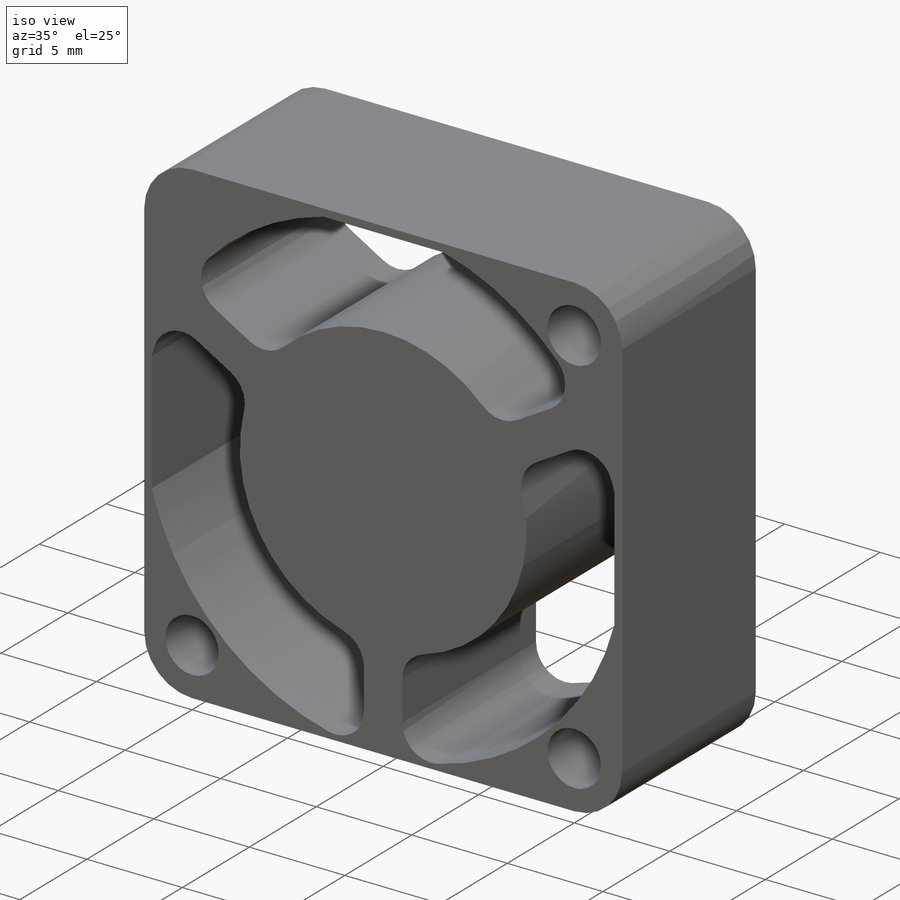
[diagram: iso view]
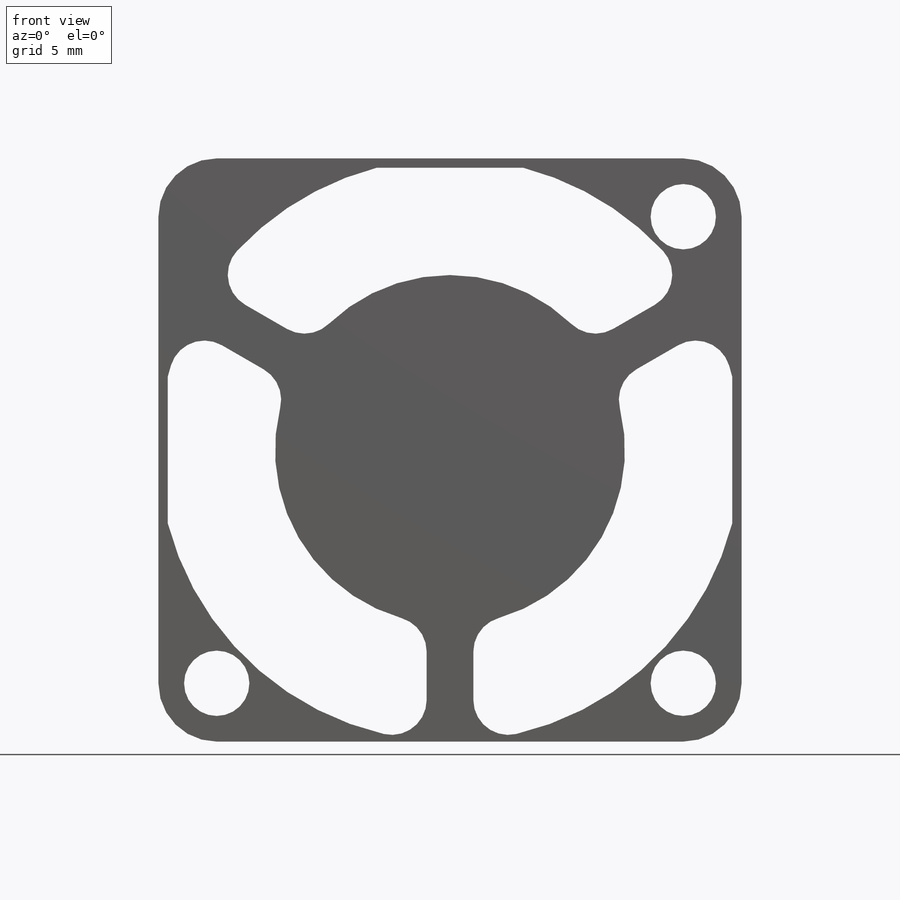
[diagram: front view]
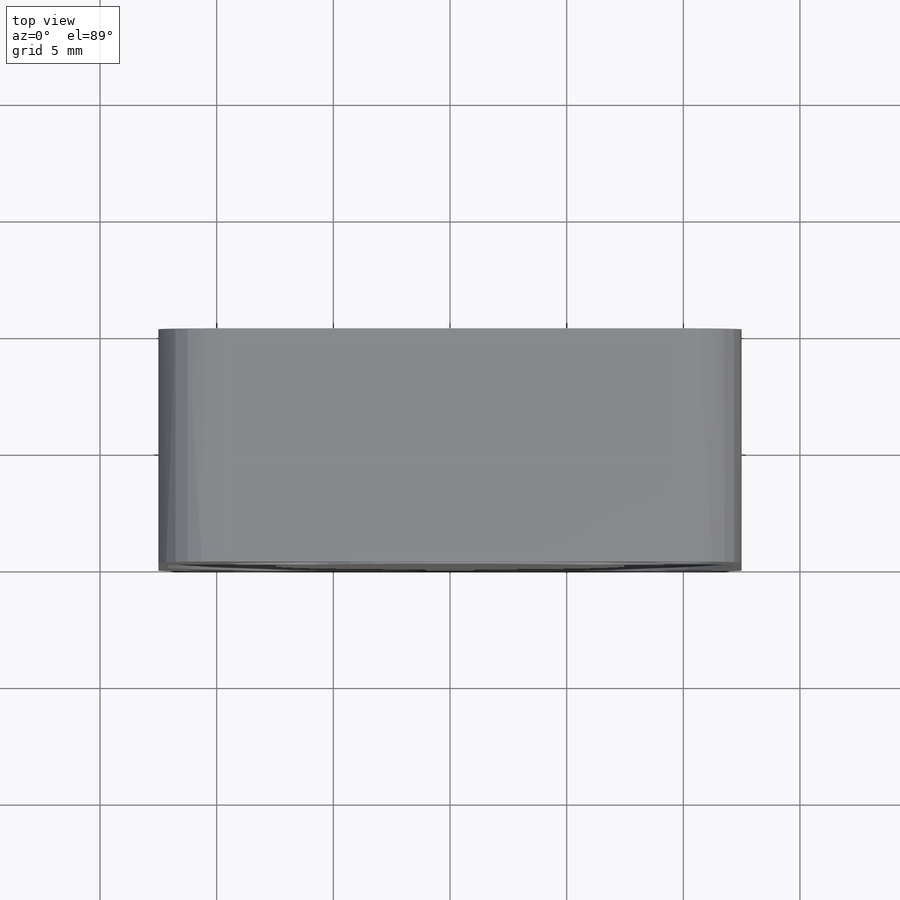
[diagram: top view]
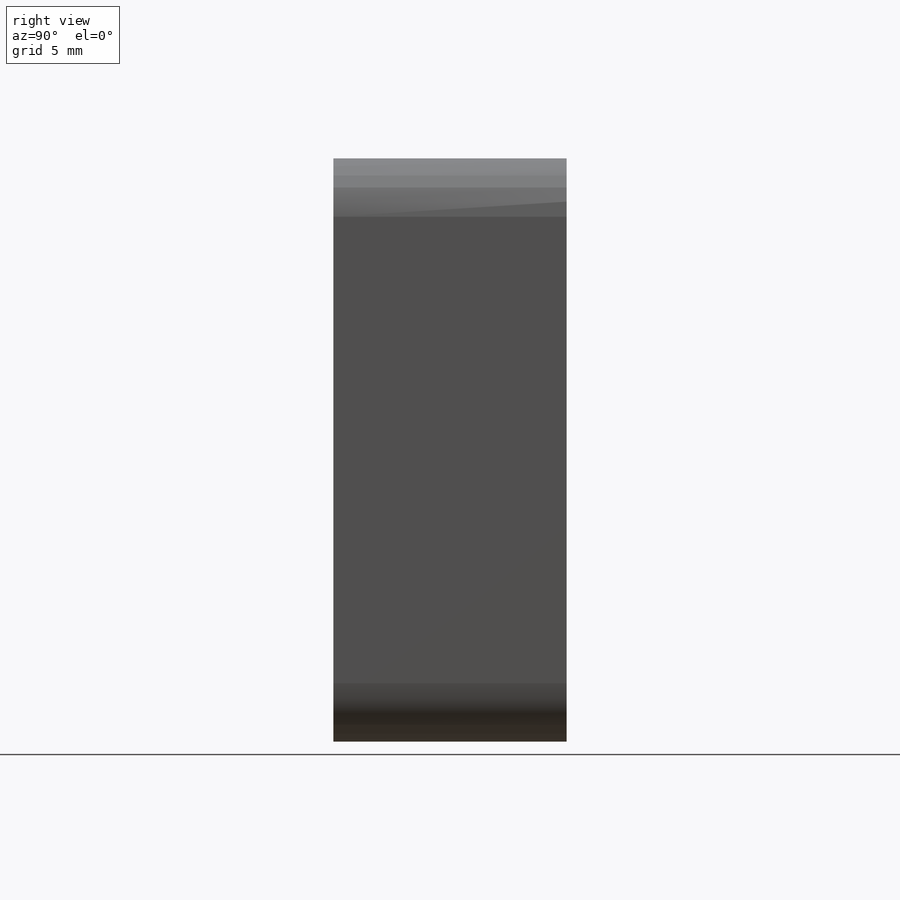
[diagram: right view]
SOLIDWORKS PART (.sldprt)
format: sldprt  version: not decoded by parser v0  size: 307,200 bytes
history: native  units: mm
features: sketch x4, fillet x2, material x1, extrude x1, cut_extrude x1, hole x1 (+16 scaffold rows collapsed)
feature tree (26):
  scaffold x16  (default folders/planes/origin — collapsed)
  material  "Material <not specified>"
  sketch  "Sketch1"  dims[D1=25.0mm D2=25.0mm]
  extrude  "Extrude1"  Depth=10mm
  fillet  "Fillet1"  Radius=2.5mm
  sketch  "Sketch2"  dims[c1.D1=15.0mm c1.D2=25.0mm c1.D9=15.0mm c1.D3=0.4mm c1.D4=0.4mm c1.D5=0.5mm c1.D6=15.0mm c2.D6=~179.070184deg c3.D6=~11.72444mm c4.D6=~179.070184deg c5.D6=15.0mm c6.D6=~0.929816deg c7.D6=0.4mm c7.D7=~15.50237mm c8.D7=120.0deg c8.D8=~6.89927mm c9.D8=120.0deg c9.D9=2.0mm c9.D10=1.0mm c9.D11=2.0mm c9.D12=1.0mm c9.D13=2.0mm c9.D14=1.0mm]
  cut_extrude  "Extrude2"  [1 undecoded]
  fillet  "Fillet2"  Radius=1.5mm
  hole  "Ø2.8 (2.8) Diameter Hole1"  Diameter=2.8mm Depth=10mm
  sketch  "Sketch4"  dims[c1.D1=10.0mm c1.D2=~14.046983mm c2.D1=10.0mm c2.D2=20.0mm c2.D3=20.0mm c2.D4=10.0mm]
  sketch  "Sketch3"  dims[hole-wizard template sketch: 59 standard entries collapsed; hole parameters kept: c18.Thru Hole Dia.=2.8mm c18.Thru Hole Depth=10.0mm]
decode coverage: 8 of 9 modeling features carry decoded parameters
note: ~ marks probable driven/reference dimensions
note: 1 parameter value undecoded
note: suppression state not decoded; provenance and decode notes live in map.json
